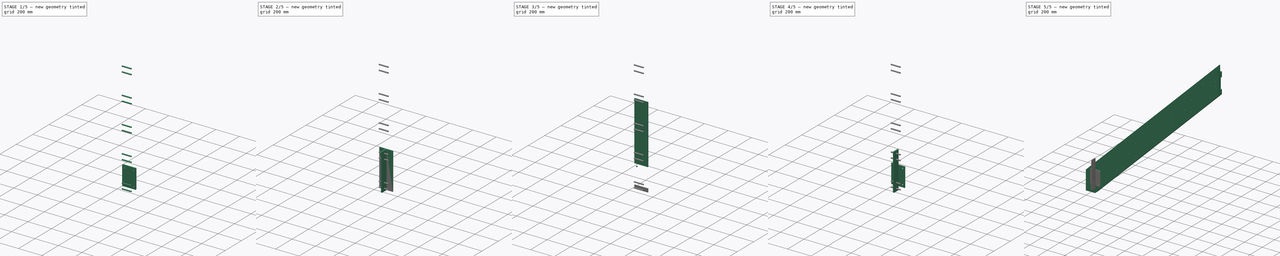
[diagram: build sequence overview — one tinted view per stage of 5, left to right]
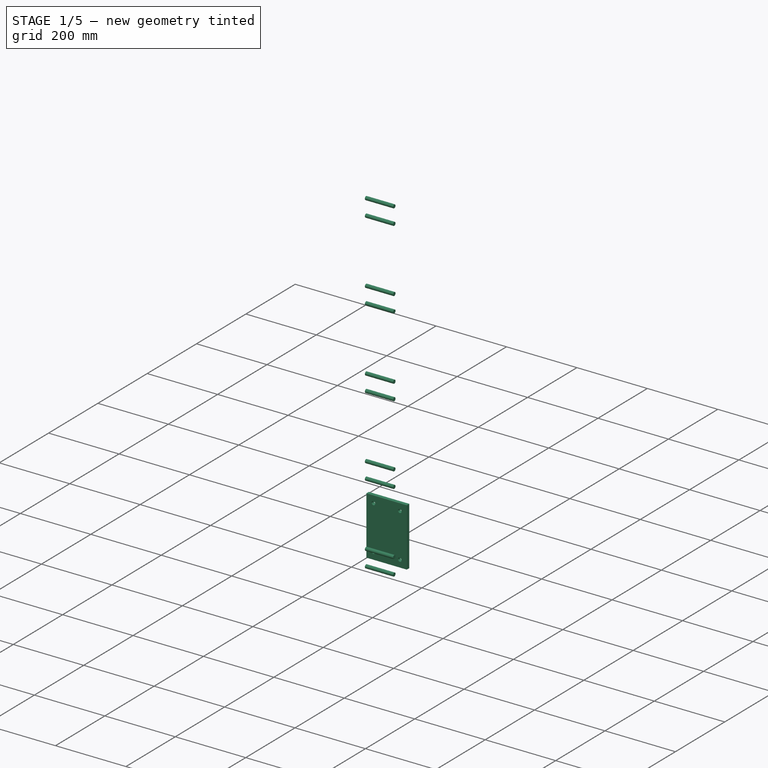
[diagram: stage 1 of 5 — iso view after this stage's code; geometry added in this stage tinted green]
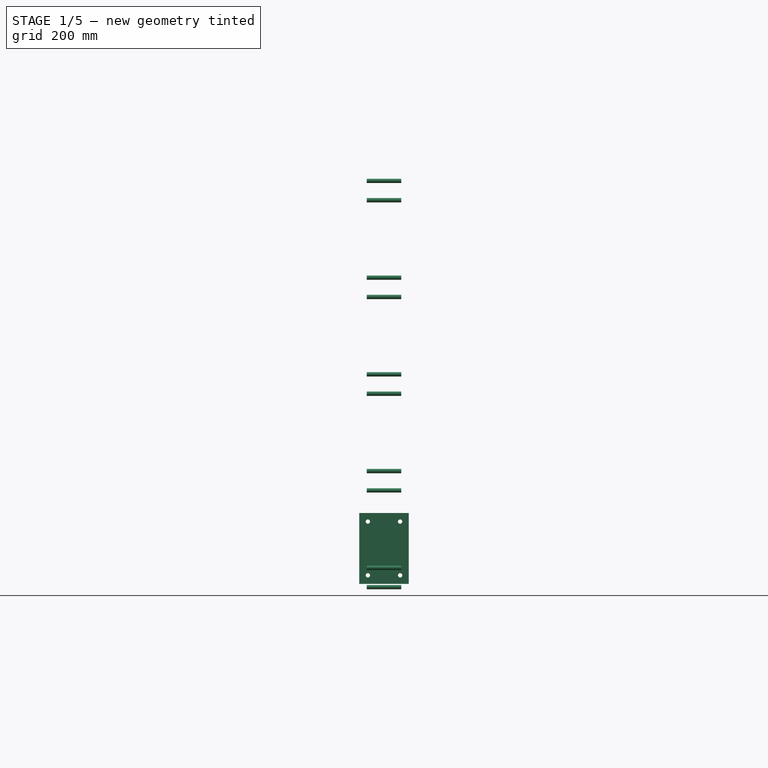
[diagram: stage 1 of 5 — front view after this stage's code; geometry added in this stage tinted green]
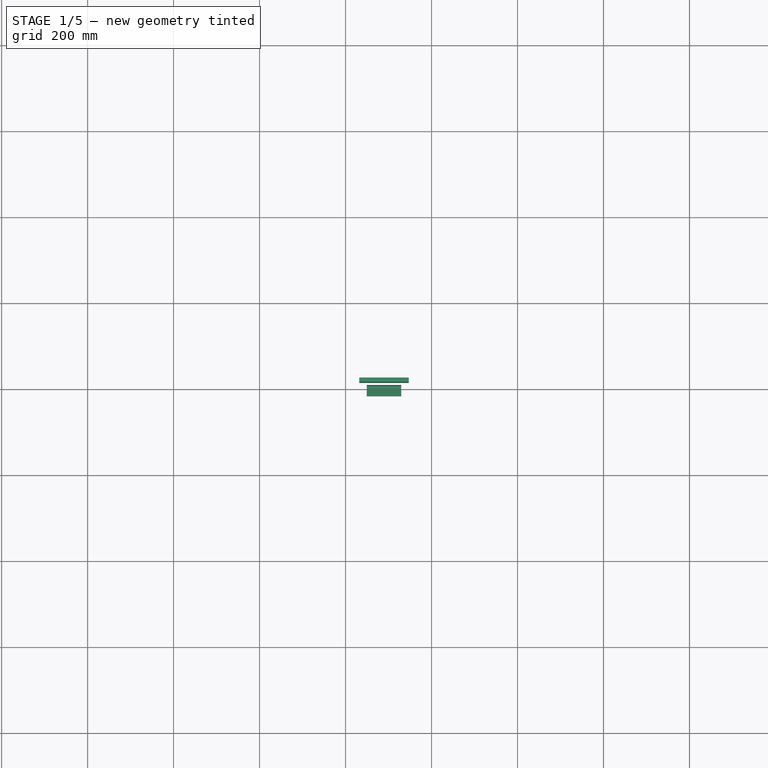
[diagram: stage 1 of 5 — top view after this stage's code; geometry added in this stage tinted green]
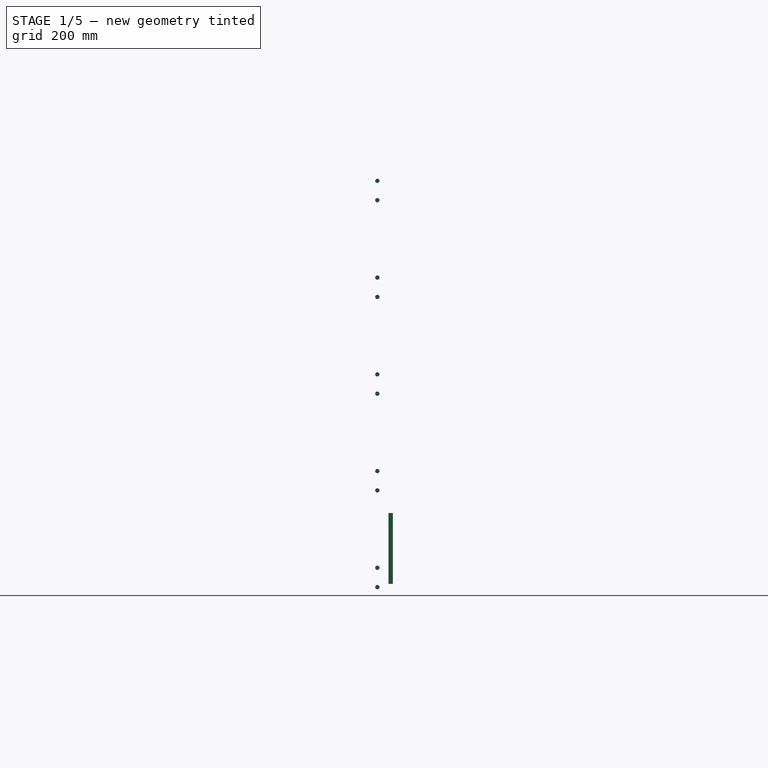
[diagram: stage 1 of 5 — right view after this stage's code; geometry added in this stage tinted green]
FCSTD DOCUMENT  (FreeCAD 0.17R10993 (Git))
Label: railing_plate
License: All rights reserved
LicenseURL: http://en.wikipedia.org/wiki/All_rights_reserved
objects: Part::Part2DObjectPython×5, Part::Extrusion×5, Part::FeaturePython×3, Sketcher::SketchObject×3, PartDesign::Pad×3, TechDraw::DrawProjGroupItem×3, Part::Cut×2, App::DocumentObjectGroup×2, PartDesign::ShapeBinder×1, PartDesign::Body×1, Part::Compound×1, Part::Chamfer×1, TechDraw::DrawSVGTemplate×1, TechDraw::DrawViewPart×1, TechDraw::DrawProjGroup×1, TechDraw::DrawPage×1
note: 28 computed .brp shape members not serialized (recipe doc carries the construction recipe); baked Part::Feature solids carry a one-line shape summary decoded from their .brp

FEATURE [PartDesign::ShapeBinder] Copydouble_beam_01
FEATURE [Sketcher::SketchObject] Sketch
  ExternalGeometry = -> [Copydouble_beam_01]
  MapMode = 5
  Placement = pos=(0,-375,0) rot=(1,0,0;1.5708rad)
  Support = -> [Copydouble_beam_01]
  sketch-geometry (10):
    g0: LineSegment StartX=31.8902 StartY=245 StartZ=0 EndX=146.89 EndY=245 EndZ=0
    g1: LineSegment StartX=146.89 StartY=245 StartZ=0 EndX=146.89 EndY=80 EndZ=0
    g2: LineSegment StartX=146.89 StartY=80 StartZ=0 EndX=31.8902 EndY=80 EndZ=0
    g3: LineSegment StartX=31.8902 StartY=80 StartZ=0 EndX=31.8902 EndY=245 EndZ=0
    g4: LineSegment [constr] StartX=51.8902 StartY=225 StartZ=0 EndX=89.3902 EndY=162.5 EndZ=0
    g5: LineSegment [constr] StartX=89.3902 StartY=162.5 StartZ=0 EndX=126.89 EndY=100 EndZ=0
    g6: Circle CenterX=51.8902 CenterY=225 CenterZ=0 NormalX=0 NormalY=0 NormalZ=1 Radius=5
    g7: Circle CenterX=126.89 CenterY=100 CenterZ=0 NormalX=0 NormalY=0 NormalZ=1 Radius=5
    g8: Circle CenterX=51.8902 CenterY=100 CenterZ=0 NormalX=0 NormalY=0 NormalZ=1 Radius=5
    g9: Circle CenterX=126.89 CenterY=225 CenterZ=0 NormalX=0 NormalY=0 NormalZ=1 Radius=5
  constraints (24):
    c: Coincident(g0,g1)
    c: Coincident(g1,g2)
    c: Coincident(g2,g3)
    c: Coincident(g3,g0)
    c: Horizontal(g0)
    c: Horizontal(g2)
    c: Vertical(g1)
    c: Vertical(g3)
    c: Coincident(g4,g-4)
    c: Coincident(g5,g4)
    c: Coincident(g5,g-6)
    c: Parallel(g5,g4)
    c: Equal(g4,g5)
    c: DistanceX(g4,g0) = -20
    c: DistanceY(g4,g0) = 20
    c: Symmetric(g1,g0,g4)
    c: Coincident(g6,g4)
    c: Coincident(g7,g5)
    c: Coincident(g8,g-5)
    c: Radius(g6) = 5
    c: Coincident(g9,g-3)
    c: Equal(g8,g6)
    c: Equal(g7,g6)
    c: Equal(g9,g6)
FEATURE [PartDesign::Pad] Pad
  Length = 10
  Length2 = 100
  Profile = -> Sketch
  Type = 0
FEATURE [Part::Part2DObjectPython] Circle002  # Draft 2D object (typed FeaturePython)
  FirstAngle = 0
  LastAngle = 0
  MakeFace = true
  Placement = pos=(64.3902,-411,100) rot=(0.57735,-0.57735,-0.57735;2.0944rad)
  Radius = 5
FEATURE [Part::Extrusion] Extrude006
  Base = -> Circle002
  Dir = (1,0,0)
  DirMode = 0
  FaceMakerClass = Part::FaceMakerBullseye
  LengthFwd = 80
  LengthRev = 0
  Placement = pos=(25,0,0) rot=(0,0,1;0rad)
  Solid = false
  Symmetric = true
FEATURE [Part::FeaturePython] Array003  # Draft array (typed FeaturePython)
  Angle = 360
  ArrayType = 0
  Axis = (0,0,1)
  Base = -> Extrude006
  Center = (0,0,0)
  Fuse = false
  IntervalAxis = (0,0,0)
  IntervalX = (0,0,45)
  IntervalY = (0,0,225)
  IntervalZ = (0,0,0)
  NumberPolar = 1
  NumberX = 2
  NumberY = 5
  NumberZ = 1
  Placement = pos=(0,0,-27.5) rot=(0,0,1;0rad)
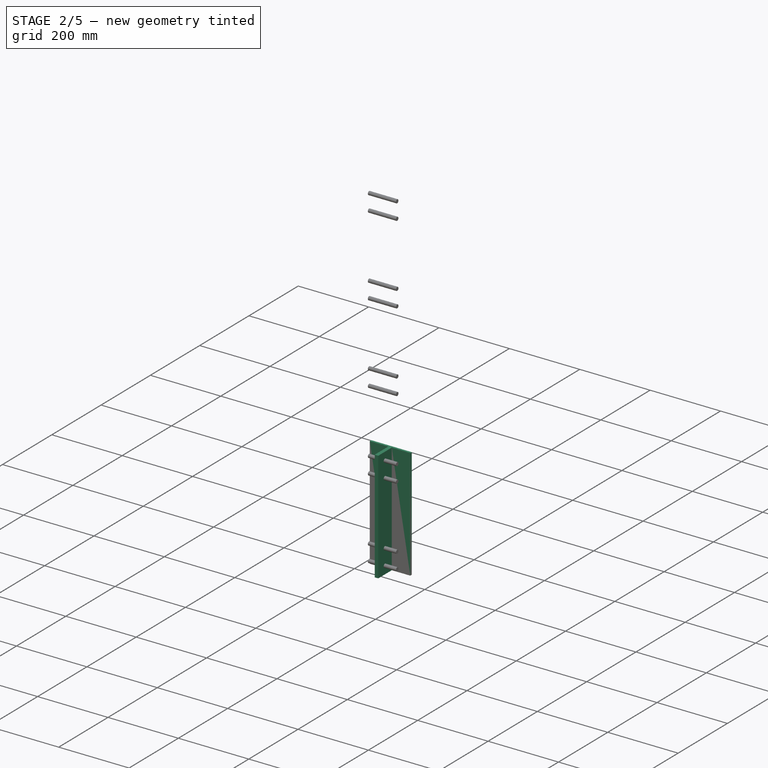
[diagram: stage 2 of 5 — iso view after this stage's code; geometry added in this stage tinted green]
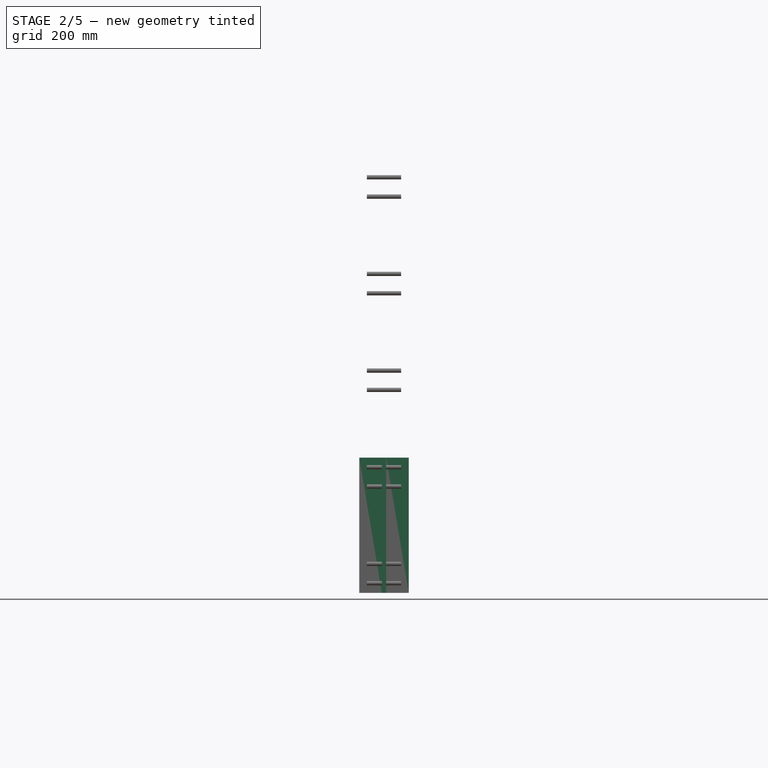
[diagram: stage 2 of 5 — front view after this stage's code; geometry added in this stage tinted green]
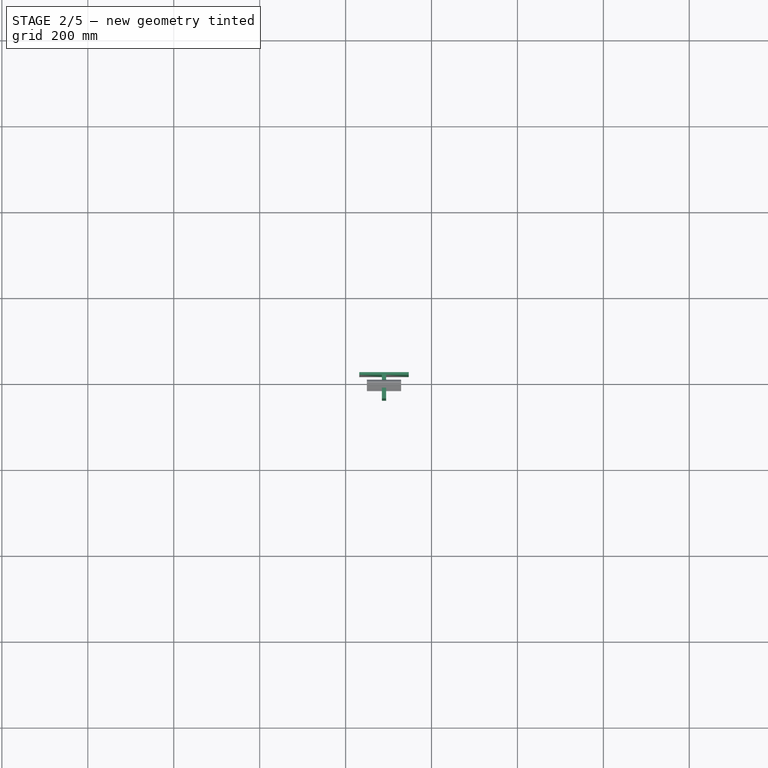
[diagram: stage 2 of 5 — top view after this stage's code; geometry added in this stage tinted green]
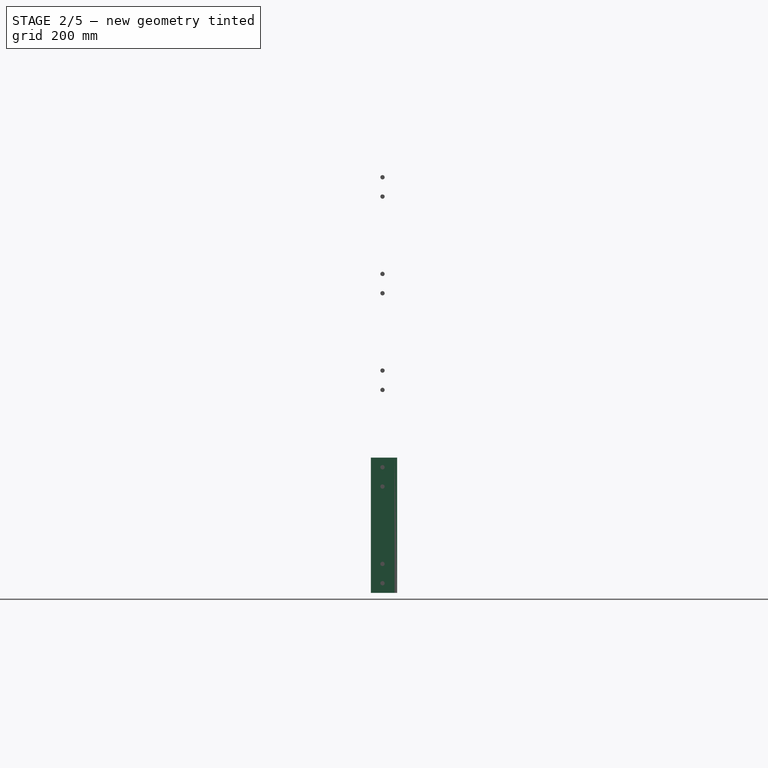
[diagram: stage 2 of 5 — right view after this stage's code; geometry added in this stage tinted green]
FEATURE [Sketcher::SketchObject] Sketch001
  ExternalGeometry = -> [Pad]
  MapMode = 5
  Placement = pos=(0,-385,0) rot=(1,0,0;1.5708rad)
  Support = -> [Pad]
  sketch-geometry (6):
    g0: LineSegment StartX=84.3902 StartY=245 StartZ=0 EndX=94.3902 EndY=245 EndZ=0
    g1: LineSegment StartX=94.3902 StartY=245 StartZ=0 EndX=94.3902 EndY=80 EndZ=0
    g2: LineSegment StartX=94.3902 StartY=80 StartZ=0 EndX=84.3902 EndY=80 EndZ=0
    g3: LineSegment StartX=84.3902 StartY=80 StartZ=0 EndX=84.3902 EndY=245 EndZ=0
    g4: LineSegment [constr] StartX=31.8902 StartY=245 StartZ=0 EndX=84.3902 EndY=245 EndZ=0
    g5: LineSegment [constr] StartX=94.3902 StartY=245 StartZ=0 EndX=146.89 EndY=245 EndZ=0
  constraints (18):
    c: Coincident(g0,g1)
    c: Coincident(g1,g2)
    c: Coincident(g2,g3)
    c: Coincident(g3,g0)
    c: Horizontal(g0)
    c: Horizontal(g2)
    c: Vertical(g1)
    c: Vertical(g3)
    c: PointOnObject(g0,g-5)
    c: PointOnObject(g1,g-6)
    c: Coincident(g4,g-5)
    c: Horizontal(g4)
    c: Coincident(g5,g0)
    c: Horizontal(g5)
    c: Equal(g5,g4)
    c: DistanceX(g2,g2) = 10
    c: Coincident(g4,g0)
    c: Coincident(g5,g-5)
FEATURE [PartDesign::Pad] Pad001
  BaseFeature = -> Pad
  Length = 60
  Length2 = 100
  Profile = -> Sketch001
  Type = 0
FEATURE [Sketcher::SketchObject] Sketch002
  ExternalGeometry = -> [Pad001]
  MapMode = 5
  Placement = pos=(0,0,245) rot=(0,0,1;0rad)
  Support = -> [Pad001]
  sketch-geometry (4):
    g0: LineSegment StartX=84.3902 StartY=-385 StartZ=0 EndX=94.3902 EndY=-385 EndZ=0
    g1: LineSegment StartX=94.3902 StartY=-385 StartZ=0 EndX=94.3902 EndY=-445 EndZ=0
    g2: LineSegment StartX=94.3902 StartY=-445 StartZ=0 EndX=84.3902 EndY=-445 EndZ=0
    g3: LineSegment StartX=84.3902 StartY=-445 StartZ=0 EndX=84.3902 EndY=-385 EndZ=0
  constraints (10):
    c: Coincident(g0,g1)
    c: Coincident(g1,g2)
    c: Coincident(g2,g3)
    c: Coincident(g3,g0)
    c: Horizontal(g0)
    c: Horizontal(g2)
    c: Vertical(g1)
    c: Vertical(g3)
    c: Coincident(g0,g-4)
    c: Coincident(g1,g-3)
FEATURE [PartDesign::Pad] Pad002
  BaseFeature = -> Pad001
  Length = 300
  Length2 = 100
  Profile = -> Sketch002
  Type = 0
FEATURE [PartDesign::Body] Body001  label="railing_plate_body"
  Group = -> [Copydouble_beam_01,Sketch,Pad,Sketch001,Pad001,Sketch002,Pad002]
  Origin = -> Body001Origin
  Tip = -> Pad002
FEATURE [Part::Part2DObjectPython] DWire  # Draft 2D object (typed FeaturePython)
  ChamferSize = 0
  Closed = true
  End = (146.89,-377,80)
  FilletRadius = 0
  Length = 352
  MakeFace = true
  Points = (8) [(31.8902,-377,80),(31.8902,-383,80),(84.3902,-383,80),(84.3902,-438,80),(94.3902,-438,80),(94.3902,-383,80),(146.89,-383,80),(146.89,-377,80)]
  Start = (31.8902,-377,80)
  Subdivisions = 0
  Support = -> [Pad002]
FEATURE [Part::Extrusion] Extrude
  Base = -> DWire
  Dir = (0,0,1)
  DirMode = 0
  FaceMakerClass = Part::FaceMakerBullseye
  LengthFwd = 285
  LengthRev = 30
  Solid = false
  Symmetric = false
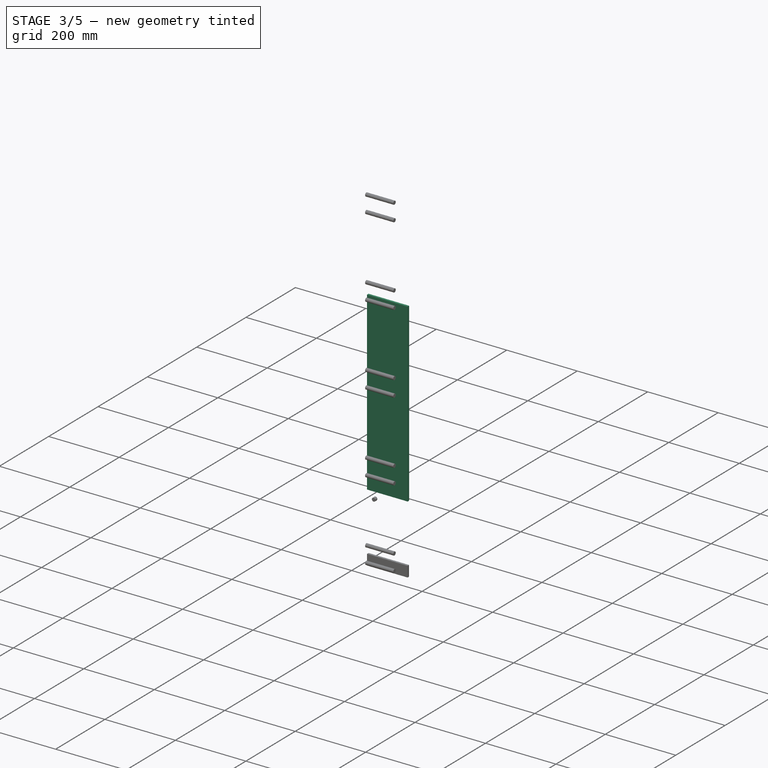
[diagram: stage 3 of 5 — iso view after this stage's code; geometry added in this stage tinted green]
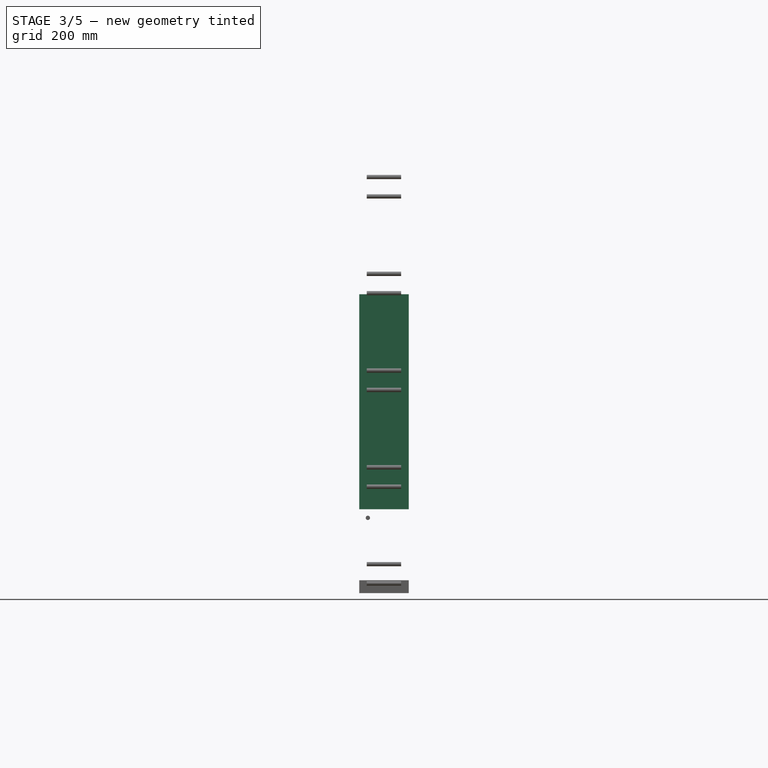
[diagram: stage 3 of 5 — front view after this stage's code; geometry added in this stage tinted green]
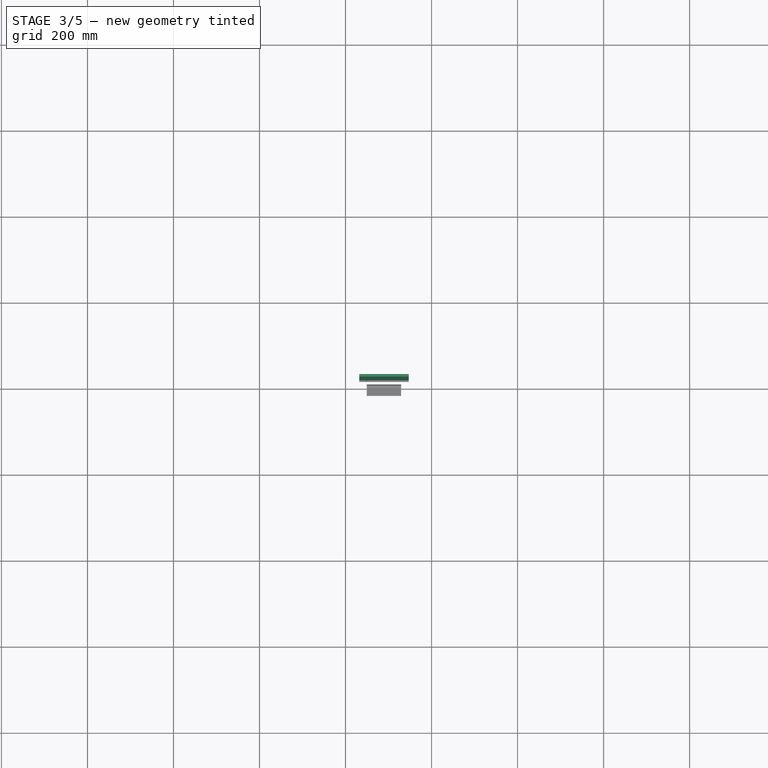
[diagram: stage 3 of 5 — top view after this stage's code; geometry added in this stage tinted green]
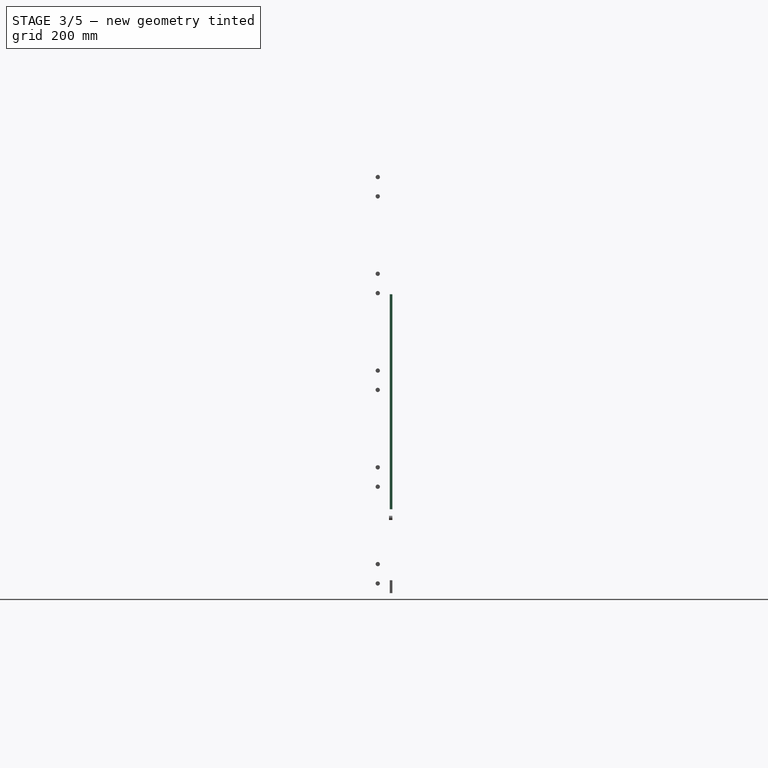
[diagram: stage 3 of 5 — right view after this stage's code; geometry added in this stage tinted green]
FEATURE [Part::Part2DObjectPython] Circle  # Draft 2D object (typed FeaturePython)
  FirstAngle = 0
  LastAngle = 0
  MakeFace = true
  Placement = pos=(51.8902,-385,225) rot=(1,0,0;1.5708rad)
  Radius = 5
  Support = -> [Pad002]
FEATURE [Part::Extrusion] Extrude002
  Base = -> Circle
  Dir = (0,1,0)
  DirMode = 0
  FaceMakerClass = Part::FaceMakerBullseye
  LengthFwd = 8
  LengthRev = 0
  Solid = false
  Symmetric = false
FEATURE [Part::Part2DObjectPython] Rectangle001  # Draft 2D object (typed FeaturePython)
  ChamferSize = 0
  Columns = 1
  FilletRadius = 0
  Height = 6
  Length = 115.1
  MakeFace = true
  Placement = pos=(31.8902,-383,245) rot=(0,0,1;0rad)
  Rows = 1
FEATURE [Part::Extrusion] Extrude003
  Base = -> Rectangle001
  Dir = (0,0,1)
  DirMode = 0
  FaceMakerClass = Part::FaceMakerBullseye
  LengthFwd = 500
  LengthRev = 0
  Solid = false
  Symmetric = false
FEATURE [Part::Part2DObjectPython] Rectangle  # Draft 2D object (typed FeaturePython)
  ChamferSize = 0
  Columns = 1
  FilletRadius = 0
  Height = 6
  Length = 115
  MakeFace = true
  Placement = pos=(31.8902,-377,50) rot=(1,0,0;3.14159rad)
  Rows = 1
  Support = -> [Extrude]
FEATURE [Part::Extrusion] Extrude005
  Base = -> Rectangle
  Dir = (0,0,1)
  DirMode = 0
  FaceMakerClass = Part::FaceMakerBullseye
  LengthFwd = 30
  LengthRev = 0
  Solid = false
  Symmetric = false
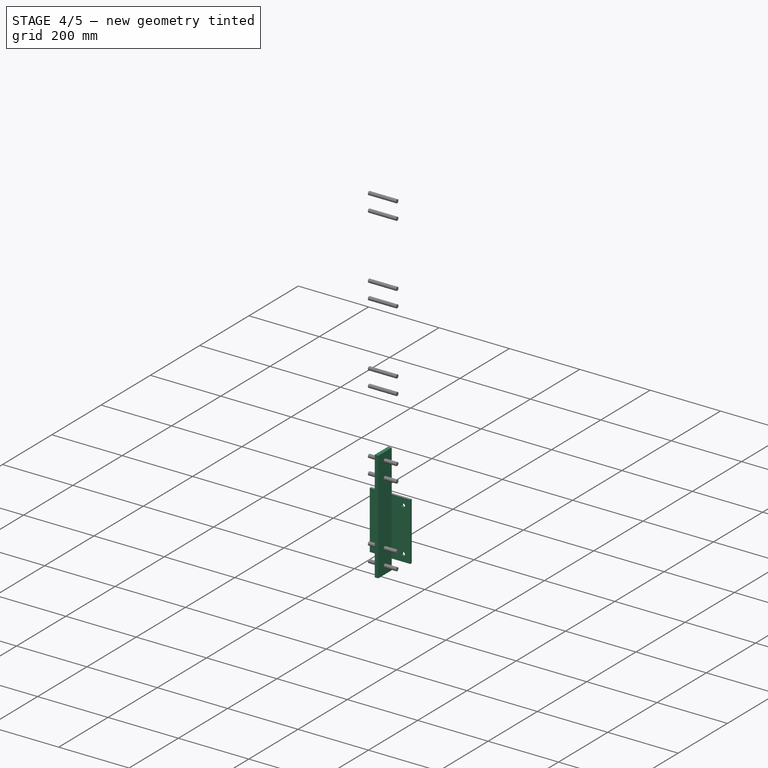
[diagram: stage 4 of 5 — iso view after this stage's code; geometry added in this stage tinted green]
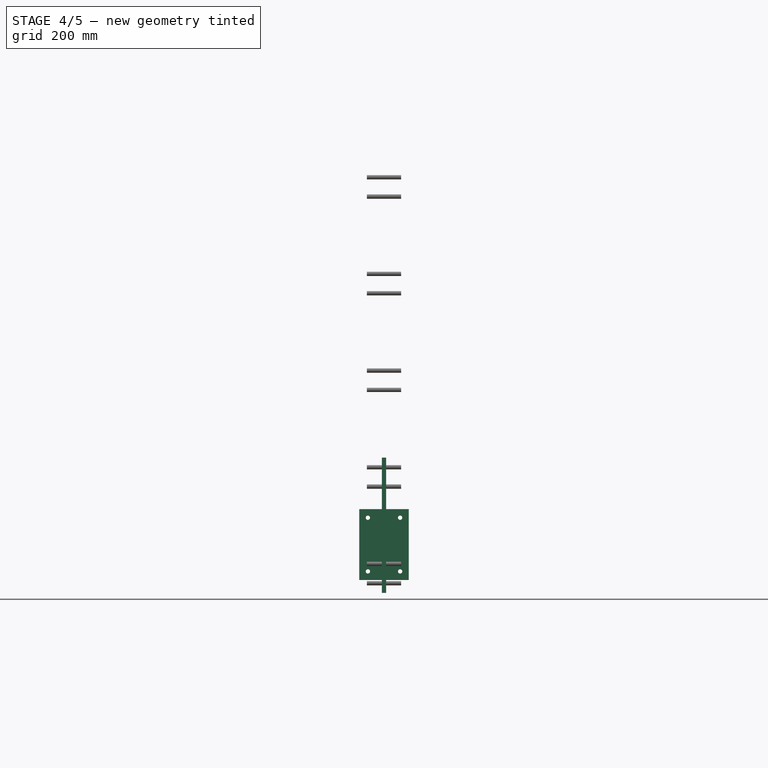
[diagram: stage 4 of 5 — front view after this stage's code; geometry added in this stage tinted green]
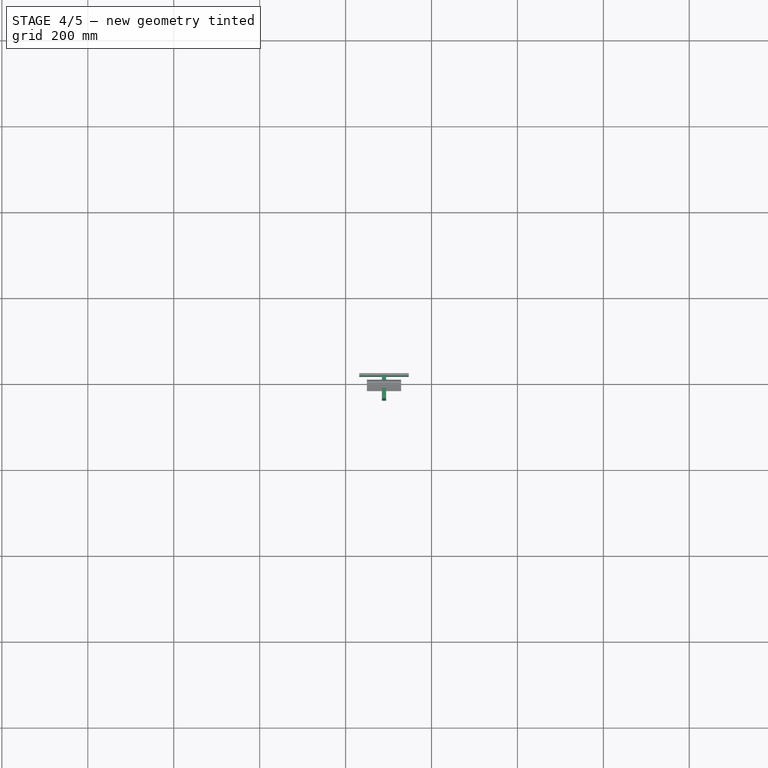
[diagram: stage 4 of 5 — top view after this stage's code; geometry added in this stage tinted green]
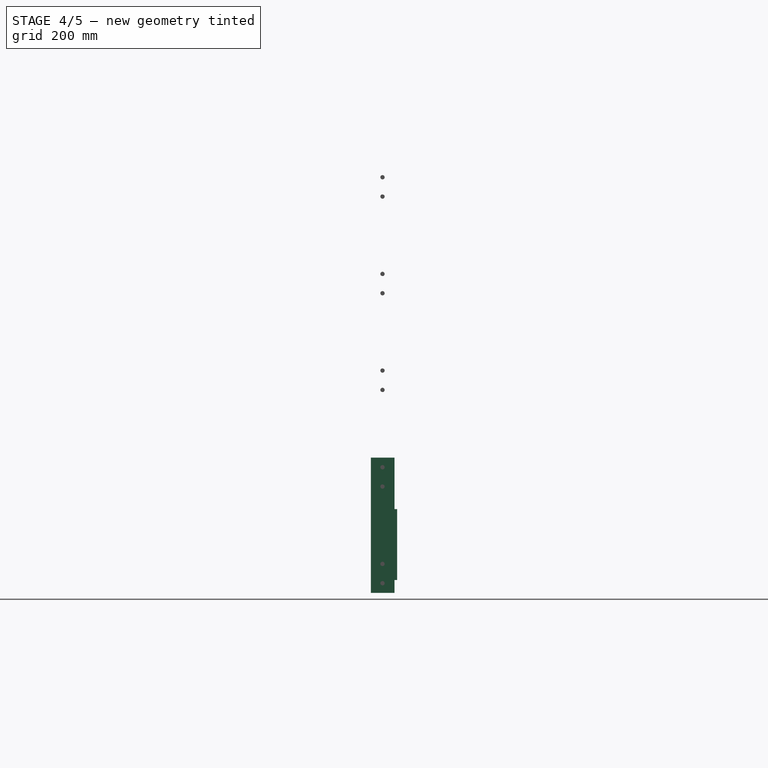
[diagram: stage 4 of 5 — right view after this stage's code; geometry added in this stage tinted green]
FEATURE [Part::FeaturePython] Array  # Draft array (typed FeaturePython)
  Angle = 360
  ArrayType = 0
  Axis = (0,0,1)
  Base = -> Extrude002
  Center = (0,0,0)
  Fuse = false
  IntervalAxis = (0,0,0)
  IntervalX = (75,0,0)
  IntervalY = (0,0,-125)
  IntervalZ = (0,0,0)
  NumberPolar = 1
  NumberX = 2
  NumberY = 2
  NumberZ = 1
FEATURE [Part::Compound] Compound
  Links = -> [Array,Extrude003,Extrude005]
FEATURE [Part::Cut] Cut
  Base = -> Extrude
  Tool = -> Compound
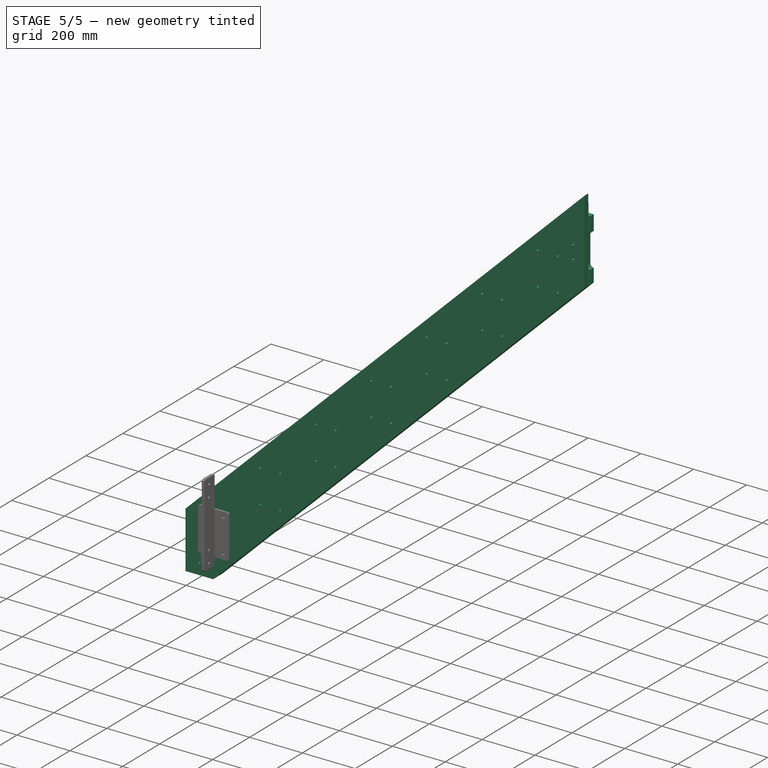
[diagram: stage 5 of 5 — iso view after this stage's code; geometry added in this stage tinted green]
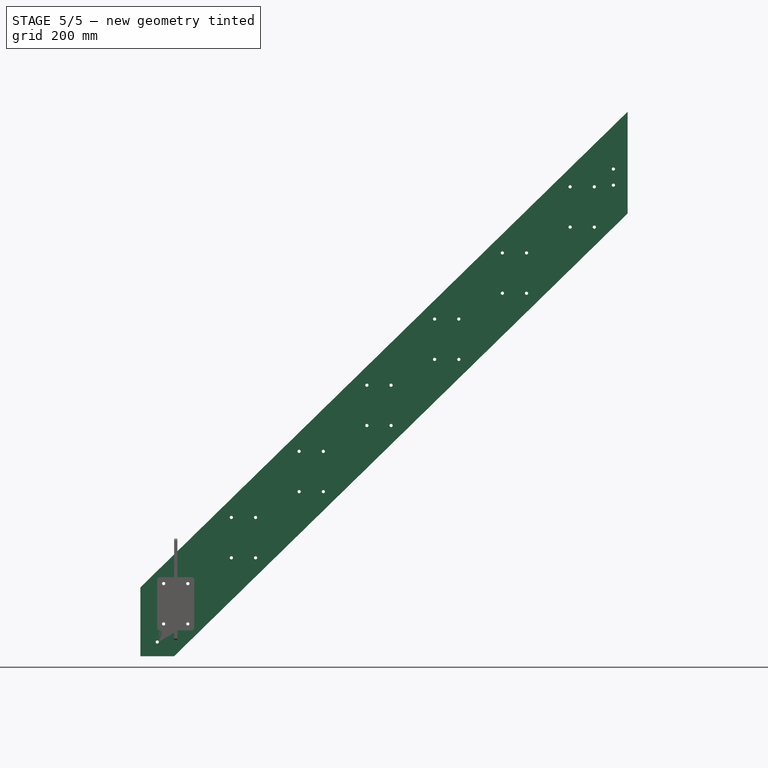
[diagram: stage 5 of 5 — front view after this stage's code; geometry added in this stage tinted green]
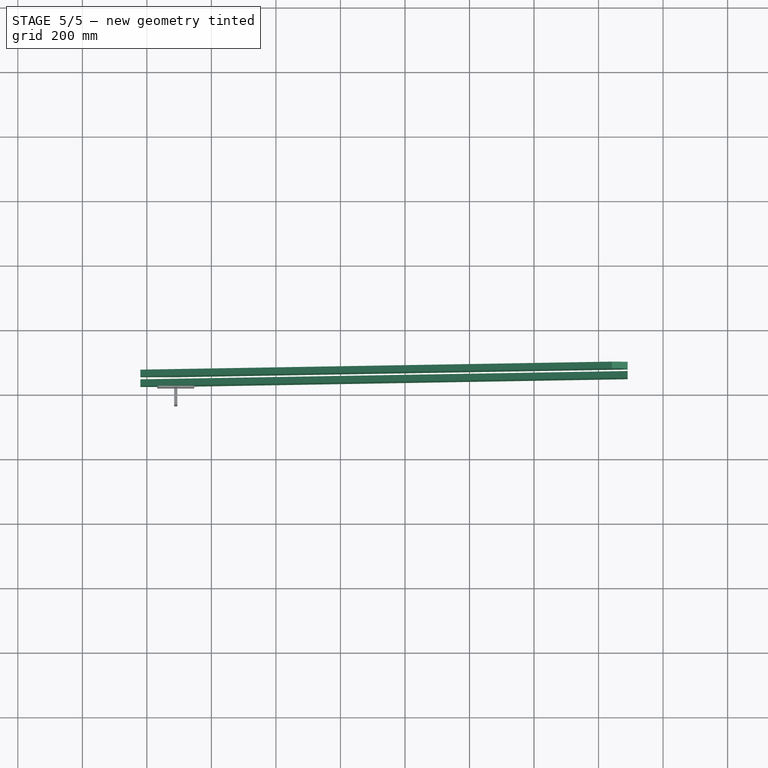
[diagram: stage 5 of 5 — top view after this stage's code; geometry added in this stage tinted green]
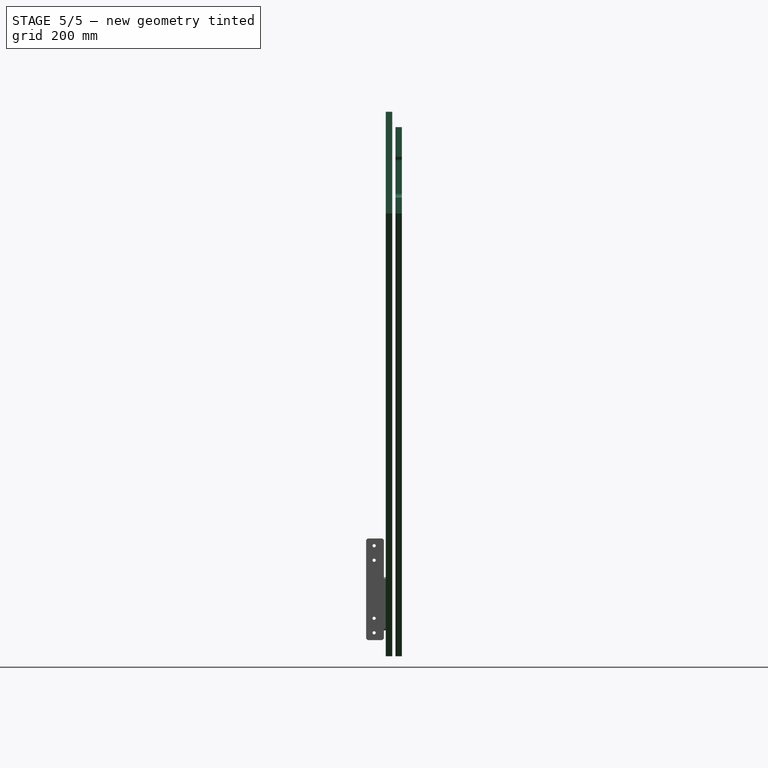
[diagram: stage 5 of 5 — right view after this stage's code; geometry added in this stage tinted green]
FEATURE [Part::FeaturePython] double_beam_01  # a2plus imported part (geometry in sourceFile) (typed FeaturePython)
  fixedPosition = true
  sourceFile = double_beam.fcstd
  timeLastImport = 1.49393e+09
  updateColors = true
FEATURE [Part::Chamfer] Chamfer
  Base = -> Cut
  Edges = 8 edges r=5: [Edge1,Edge3,Edge6,Edge15,Edge27,Edge37,Edge43,Edge44]
  Placement = pos=(0,2,0) rot=(0,0,1;0rad)
FEATURE [Part::Cut] Cut001
  Base = -> Chamfer
  Tool = -> Array003
FEATURE [App::DocumentObjectGroup] Group  label="utilities"
  Group = -> [Body001]
FEATURE [App::DocumentObjectGroup] Group001  label="ref"
  Group = -> [double_beam_01]
FEATURE [TechDraw::DrawSVGTemplate] Template
  Height = 841
  Orientation = 0
  Width = 594
FEATURE [TechDraw::DrawProjGroupItem] ProjItem  label="Front"
  ArcCenterMarks = true
  CenterScale = 2
  Direction = (0,-1,0)
  HardHidden = true
  HiddenWidth = 0.15
  HorizCenterLine = false
  IsoCount = 0
  IsoHidden = false
  IsoVisible = false
  IsoWidth = 0.3
  KeepLabel = false
  LineWidth = 0.7
  Rotation = 0
  RotationVector = (1,0,0)
  Scale = 0.5
  ScaleType = 2
  SeamHidden = false
  SeamVisible = false
  ShowSectionLine = true
  SmoothHidden = false
  SmoothVisible = false
  Source = -> Cut001
  Type = 0
  VertCenterLine = false
  X = 196.813
  Y = -150.192
FEATURE [TechDraw::DrawViewPart] View
  ArcCenterMarks = true
  CenterScale = 2
  Direction = (-0.45,-1,0.5)
  HardHidden = true
  HiddenWidth = 0.15
  HorizCenterLine = false
  IsoCount = 0
  IsoHidden = false
  IsoVisible = false
  IsoWidth = 0.3
  KeepLabel = false
  LineWidth = 0.7
  Rotation = 0
  Scale = 0.5
  ScaleType = 2
  SeamHidden = false
  SeamVisible = false
  ShowSectionLine = true
  SmoothHidden = false
  SmoothVisible = false
  Source = -> Cut001
  VertCenterLine = false
  X = 357.205
  Y = 521.746
FEATURE [TechDraw::DrawProjGroupItem] ProjItem003  label="Left"
  ArcCenterMarks = true
  CenterScale = 2
  Direction = (-1,0,0)
  HardHidden = true
  HiddenWidth = 0.15
  HorizCenterLine = false
  IsoCount = 0
  IsoHidden = false
  IsoVisible = false
  IsoWidth = 0.3
  KeepLabel = false
  LineWidth = 0.7
  Rotation = 0
  RotationVector = (0,1,0)
  Scale = 0.5
  ScaleType = 2
  SeamHidden = false
  SeamVisible = false
  ShowSectionLine = true
  SmoothHidden = false
  SmoothVisible = false
  Source = -> Cut001
  Type = 1
  VertCenterLine = false
  X = 82.5
  Y = 0
FEATURE [TechDraw::DrawProjGroupItem] ProjItem004  label="Top"
  ArcCenterMarks = true
  CenterScale = 2
  Direction = (0,0,1)
  HardHidden = true
  HiddenWidth = 0.15
  HorizCenterLine = false
  IsoCount = 0
  IsoHidden = false
  IsoVisible = false
  IsoWidth = 0.3
  KeepLabel = false
  LineWidth = 0.7
  Rotation = 0
  RotationVector = (1,0,0)
  Scale = 0.5
  ScaleType = 2
  SeamHidden = false
  SeamVisible = false
  ShowSectionLine = true
  SmoothHidden = false
  SmoothVisible = false
  Source = -> Cut001
  Type = 4
  VertCenterLine = false
  X = 0
  Y = -132.5
FEATURE [TechDraw::DrawProjGroup] ProjGroup
  Anchor = -> ProjItem
  AutoDistribute = true
  KeepLabel = false
  ProjectionType = 0
  Rotation = 0
  Scale = 0.5
  ScaleType = 2
  Source = -> Cut001
  Views = -> [ProjItem,ProjItem003,ProjItem004]
  X = 157.144
  Y = 534.249
  spacingX = 25
  spacingY = -25
FEATURE [TechDraw::DrawPage] Page
  ProjectionType = 0
  Template = -> Template
  Views = -> [ProjGroup,View]
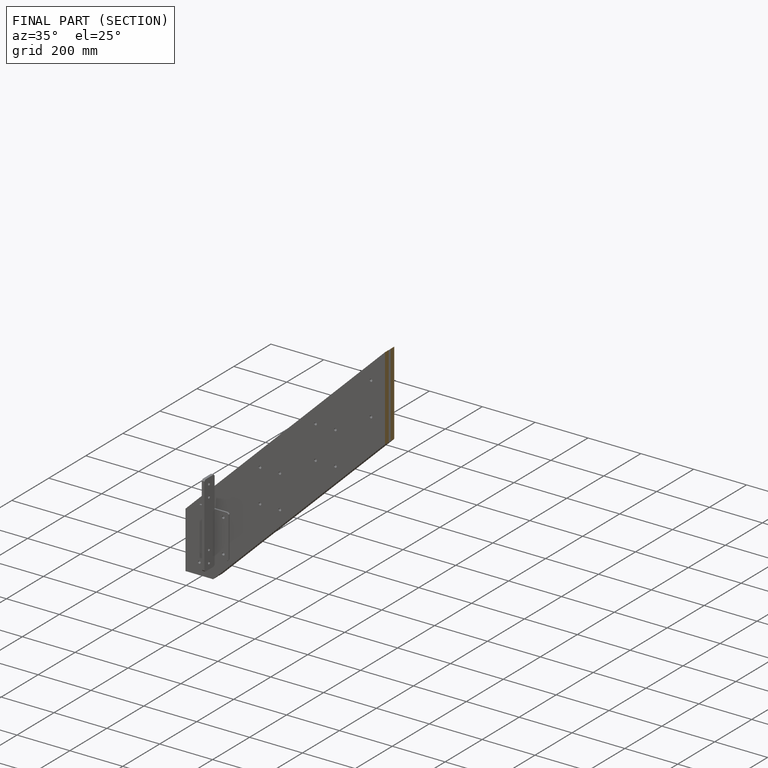
[diagram: finished part — half-section view (interior)]
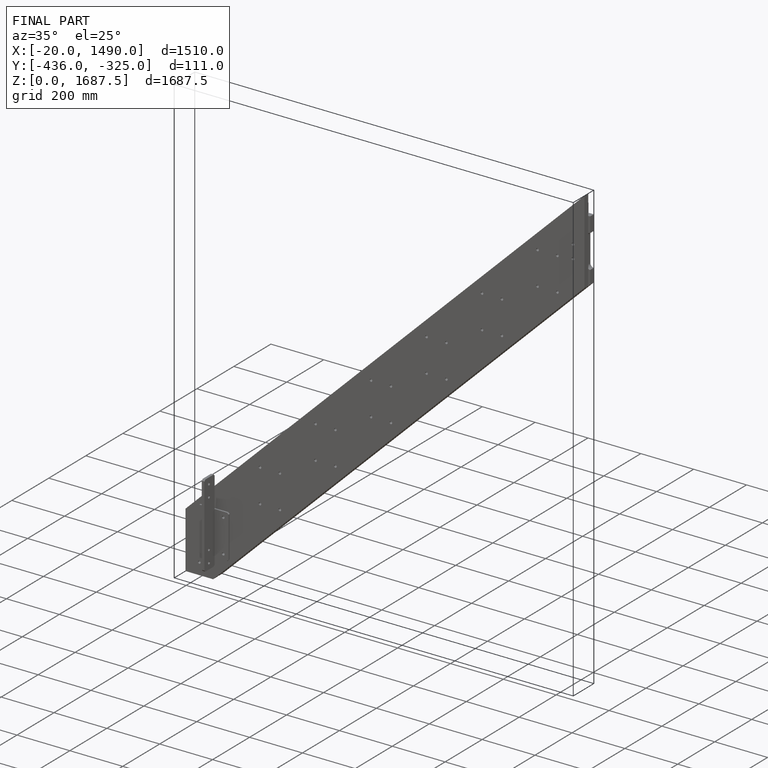
[diagram: finished part — iso view with bounding-box wireframe]
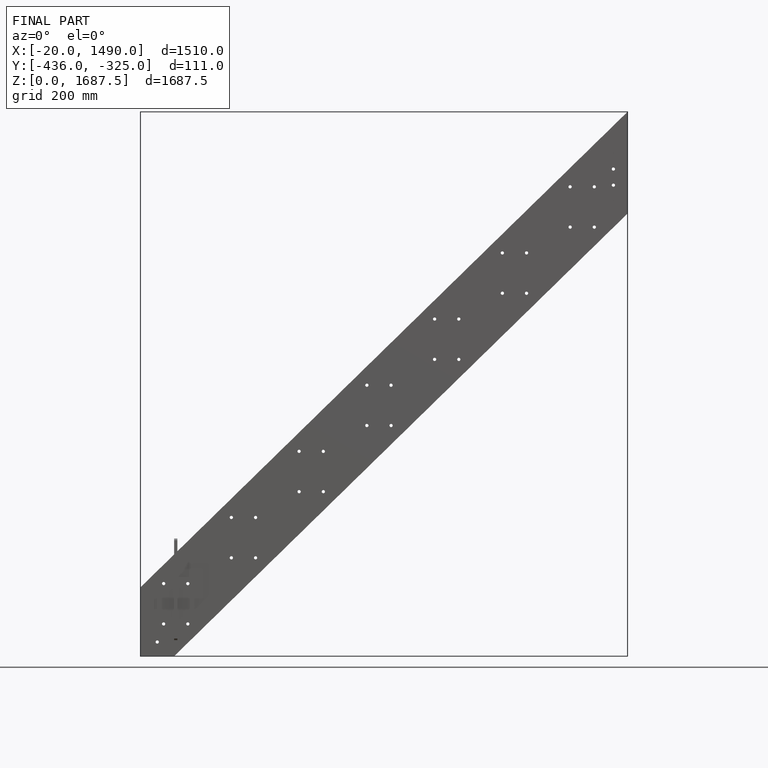
[diagram: finished part — front view with bounding-box wireframe]
